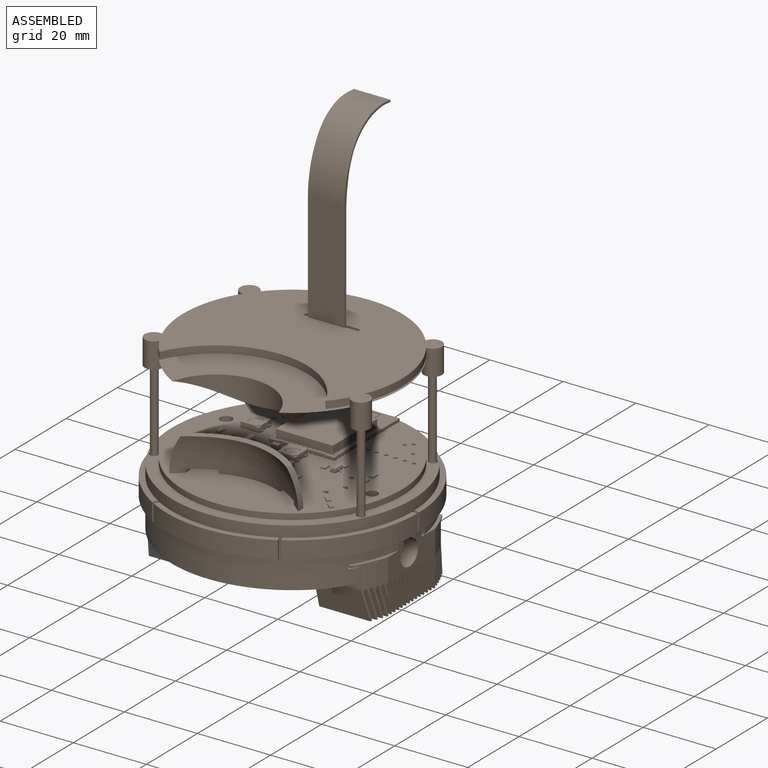
[diagram: assembled view]
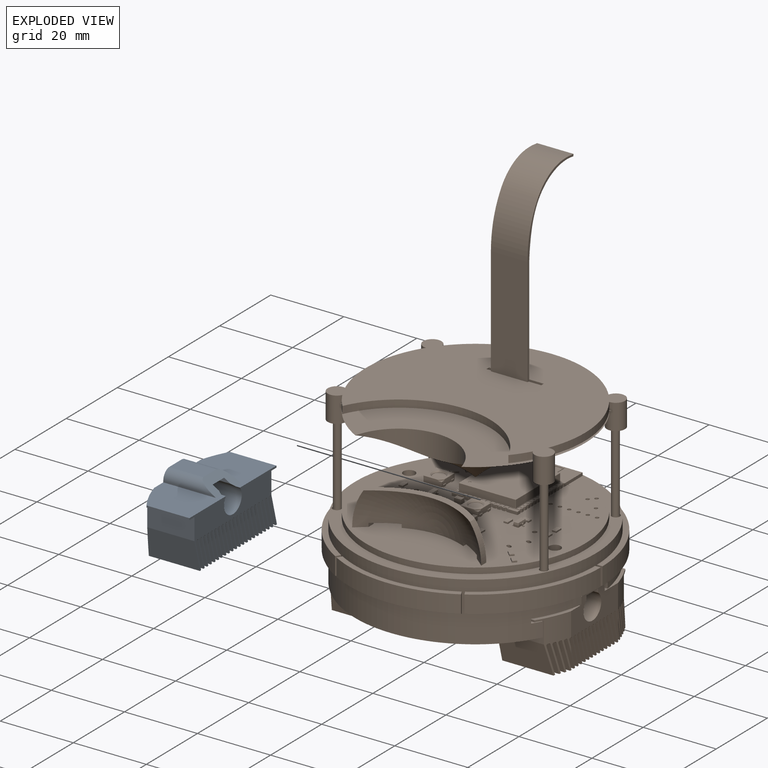
[diagram: exploded view]
GUIDED TOUR — FREECAD ASSEMBLY "whole_robot"

This assembly has 2 components, labeled P0..P1 below (a component is one placed body or linked part; the same part can appear more than once), held together by 0 modeled joints plus 1 derived contact edge. A joint is a constraint between two components; its type names the relative motion it leaves free:
  CONTACT — a derived adjacency edge — the two components touch in the source model (clearance under 2% of the assembly's diagonal); it is measured from the geometry, not a modeled constraint.
Axis/direction vectors are unit vectors and 'through' points are millimeter coordinates, both in the assembly's world frame.

MATES
  1. CONTACT "contact_0_1": P0 <-> P1, contact direction (1.000, 0.000, 0.000) through (133.69, -113.06, -18.40) mm (derived from contact, not a modeled constraint)

ASSEMBLY ORDER
  1. P0 — the base component [order heuristic]
  2. P1 [order heuristic]
Order-tag legend:
  [order heuristic] — this assembly is geometrically interlocked (no collision-free removal order exists), so components are listed in mate-graph order; insertion feasibility is not verified.

Of the 2 components, 1 carries a construction recipe — the FreeCAD feature program (sketches with constraints, then the solid features that consume them) that regenerates the part from scratch, quoted from this document or from the linked companion document it references; the rest are supplied as boundary geometry only. The tour below walks the components in assembly order: each is shown spotlighted twice — in the assembled view, then in the exploded view, where a leader line traces a displaced component back to its assembled socket (components that stay in place when exploded have no leader line; saturated green if recipe-attached, orange if geometry-only; every other component desaturated gray) — followed by its recipe or geometry summary and the mates that hold it.
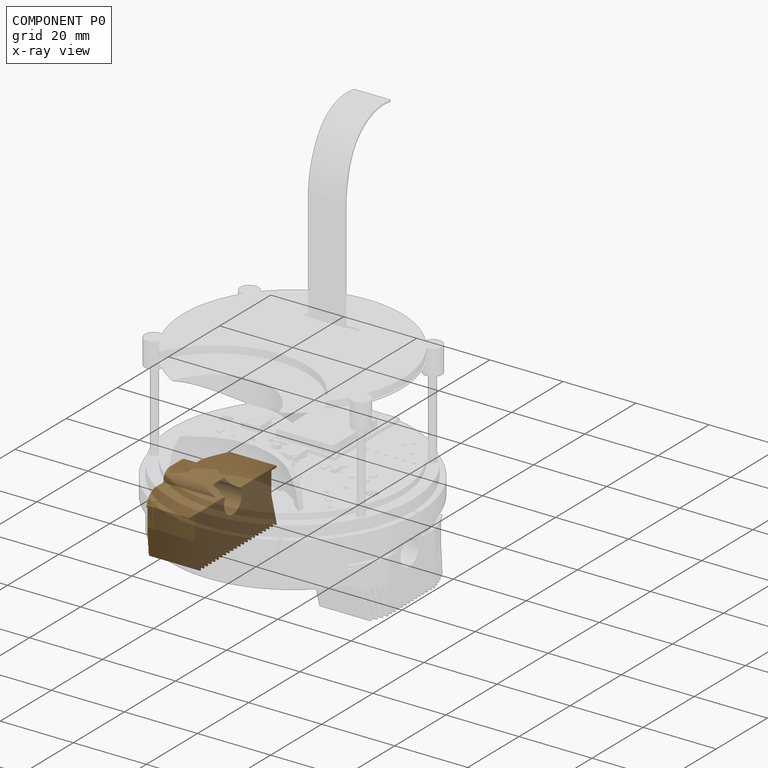
[diagram: component P0 — x-ray view]
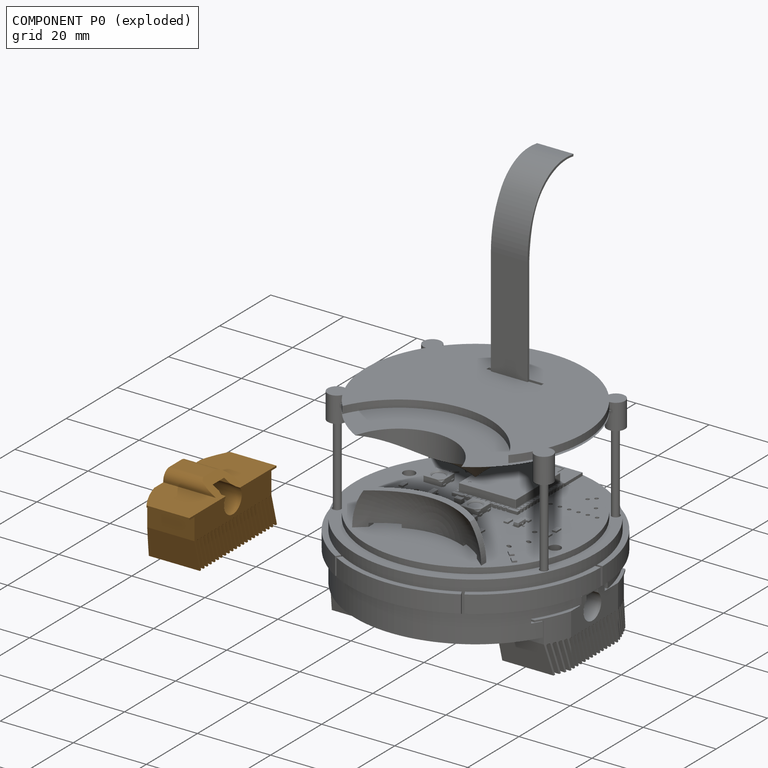
[diagram: component P0 — exploded]
COMPONENT P0 — geometry summary ("Solid001"; no construction recipe available for this part):
  bounding box: 34.2 x 17.6 x 15.7 mm
  tessellated surface: 3,678 triangles
  volume: 3857 mm^3 (41% of its bounding box)
Held by: resting contact with P1 (derived edge).
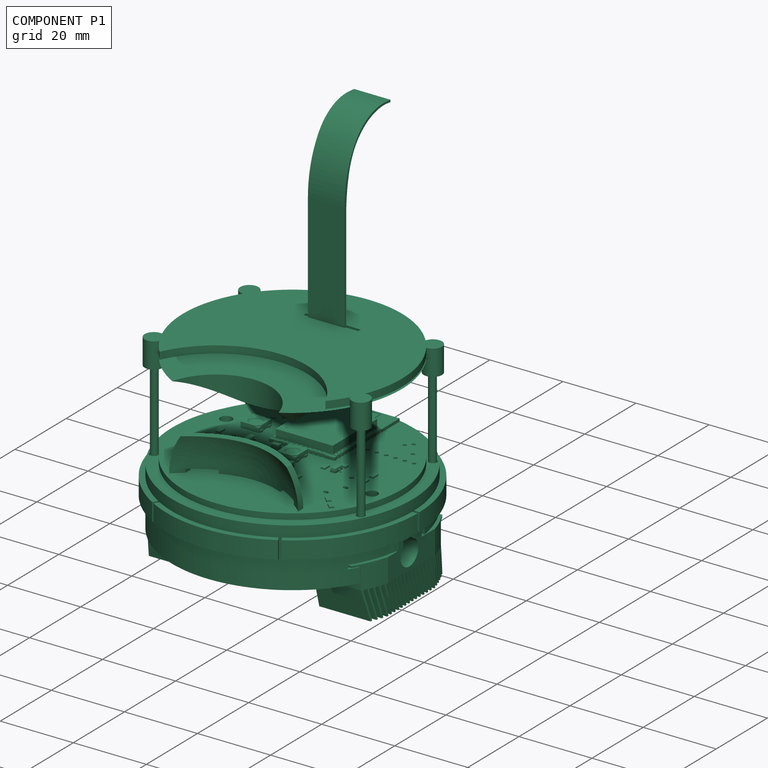
[diagram: component P1 — assembled]
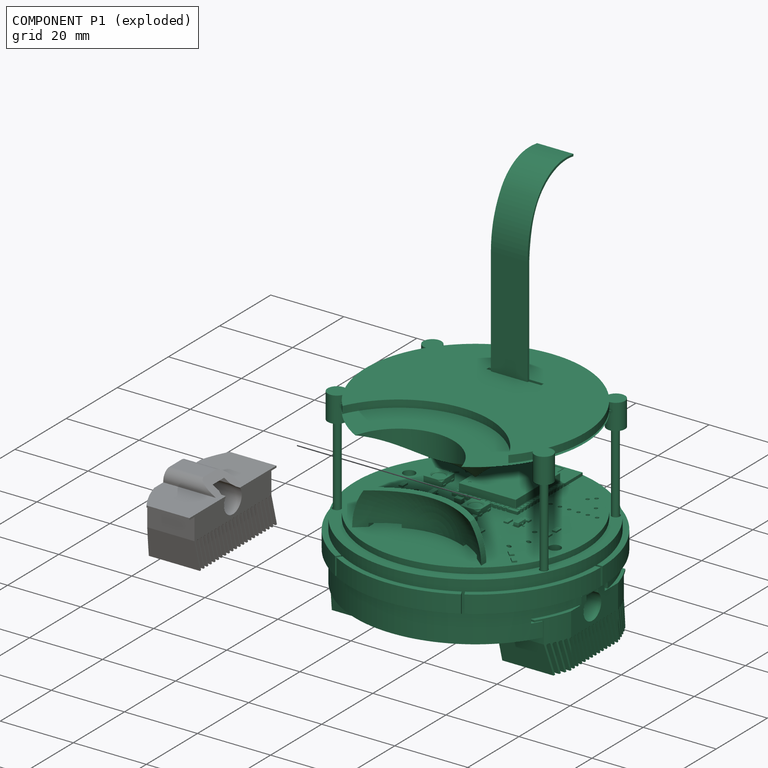
[diagram: component P1 — exploded]
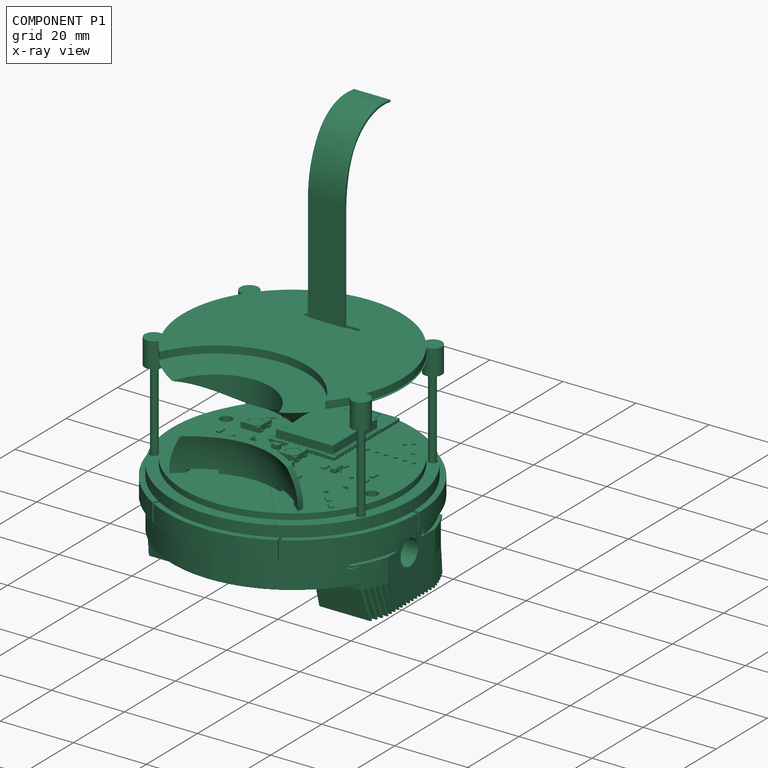
[diagram: component P1 — x-ray view]
COMPONENT P1 — recipe-attached ("Part", modeled in this document).
Held by: resting contact with P0 (derived edge).
Construction recipe (the document's own serialized feature program — sketch geometry with constraints, then the solid features built on it; lengths are millimeters unless a unit is written):

FEATURE [Sketcher::SketchObject] Sketch001
  FullyConstrained = false
  MapMode = 5
  Support = -> [XY_Plane030]
  sketch-geometry (1):
    g0: Circle CenterX=0 CenterY=0 CenterZ=0 NormalX=0 NormalY=0 NormalZ=1 AngleXU=0 Radius=33
  constraints (2):
    c: Coincident(g0,g-1)
    c: Radius(g0) = 33
FEATURE [PartDesign::Pad] Pad
  AllowMultiFace = false
  Direction = (0,0,1)
  Length = 7.5
  Length2 = 100
  Profile = -> Sketch001
  ReferenceAxis = -> Sketch001 [N_Axis]
  Type = 0
FEATURE [Sketcher::SketchObject] Sketch002
  FullyConstrained = true
  MapMode = 5
  Placement = pos=(0,0,7.5) rot=(0,0,1;0rad)
  Support = -> [Pad]
  sketch-geometry (1):
    g0: Circle CenterX=0 CenterY=0 CenterZ=0 NormalX=0 NormalY=0 NormalZ=1 AngleXU=0 Radius=34.5
  constraints (2):
    c: Radius(g0) = 34.5
    c: Coincident(g0,g-1)
FEATURE [PartDesign::Pad] Pad001
  AllowMultiFace = false
  BaseFeature = -> Pad
  Direction = (0,0,1)
  Length = 5.5
  Length2 = 100
  Profile = -> Sketch002
  ReferenceAxis = -> Sketch002 [N_Axis]
  Type = 0
FEATURE [Sketcher::SketchObject] Sketch003
  FullyConstrained = true
  MapMode = 5
  Placement = pos=(0,0,13) rot=(0,0,1;0rad)
  Support = -> [Pad001]
  sketch-geometry (1):
    g0: Circle CenterX=0 CenterY=0 CenterZ=0 NormalX=0 NormalY=0 NormalZ=1 AngleXU=0 Radius=33
  constraints (2):
    c: Coincident(g0,g-1)
    c: Radius(g0) = 33
FEATURE [PartDesign::Pad] Pad002
  AllowMultiFace = false
  BaseFeature = -> Pad001
  Direction = (0,0,1)
  Length = 3
  Length2 = 100
  Profile = -> Sketch003
  Type = 0
FEATURE [Sketcher::SketchObject] Sketch004
  AttachmentOffset = pos=(0,0,34) rot=(0,0,1;0rad)
  FullyConstrained = true
  MapMode = 5
  Placement = pos=(34,-7.5e-15,7.5e-15) rot=(0.57735,0.57735,0.57735;2.0944rad)
  Support = -> [YZ_Plane030]
  sketch-geometry (12):
    g0: LineSegment StartX=-15.375 StartY=0 StartZ=0 EndX=-15.375 EndY=4 EndZ=0
    g1: LineSegment StartX=-15.375 StartY=4 StartZ=0 EndX=-17.875 EndY=4 EndZ=0
    g2: LineSegment StartX=-17.875 StartY=4 StartZ=0 EndX=-17.875 EndY=5.17 EndZ=0
    g3: LineSegment StartX=-17.875 StartY=5.17 StartZ=0 EndX=-5.125 EndY=5.17 EndZ=0
    g4: LineSegment StartX=-5.125 StartY=5.17 StartZ=0 EndX=-5.125 EndY=7.5 EndZ=0
    g5: LineSegment StartX=-5.125 StartY=7.5 StartZ=0 EndX=5.125 EndY=7.5 EndZ=0
    g6: LineSegment StartX=5.125 StartY=7.5 StartZ=0 EndX=5.125 EndY=5.17 EndZ=0
    g7: LineSegment StartX=5.125 StartY=5.17 StartZ=0 EndX=17.875 EndY=5.17 EndZ=0
    g8: LineSegment StartX=17.875 StartY=5.17 StartZ=0 EndX=17.875 EndY=4 EndZ=0
    g9: LineSegment StartX=17.875 StartY=4 StartZ=0 EndX=15.375 EndY=4 EndZ=0
    g10: LineSegment StartX=15.375 StartY=4 StartZ=0 EndX=15.375 EndY=0 EndZ=0
    g11: LineSegment StartX=15.375 StartY=0 StartZ=0 EndX=-15.375 EndY=0 EndZ=0
  constraints (35):
    c: Coincident(g0,g1)
    c: Coincident(g1,g2)
    c: Coincident(g2,g3)
    c: Coincident(g3,g4)
    c: Coincident(g4,g5)
    c: Coincident(g5,g6)
    c: Coincident(g6,g7)
    c: Coincident(g7,g8)
    c: Coincident(g8,g9)
    c: Coincident(g9,g10)
    c: Coincident(g10,g11)
    c: Coincident(g11,g0)
    c: Horizontal(g5)
    c: Horizontal(g7)
    c: Horizontal(g9)
    c: Horizontal(g1)
    c: Horizontal(g3)
    c: Horizontal(g11)
    c: Vertical(g6)
    c: Vertical(g4)
    c: Vertical(g2)
    c: Vertical(g0)
    c: Vertical(g10)
    c: Vertical(g8)
    c: Symmetric(g10,g0,g-1)
    c: DistanceY(g10,g5) = 7.5
    c: DistanceY(g10,g10) = 4
    c: DistanceY(g8,g8) = 1.17
    c: DistanceX(g11,g11) = 30.75
    c: DistanceX(g9,g9) = 2.5
    c: Equal(g2,g8)
    c: Equal(g9,g1)
    c: Equal(g3,g7)
    c: Equal(g0,g10)
    c: DistanceX(g3,g6) = 10.25
FEATURE [PartDesign::Pocket] Pocket  label="Fot1"
  AllowMultiFace = false
  BaseFeature = -> Pad002
  Direction = (-1,2e-16,-3e-16)
  Length = 18
  Length2 = 100
  Profile = -> Sketch004
  Type = 4
FEATURE [Sketcher::SketchObject] Sketch005
  AttachmentOffset = pos=(0,0,-34) rot=(0,1,0;3.14159rad)
  FullyConstrained = true
  MapMode = 5
  Placement = pos=(-34,7.5e-15,-7.5e-15) rot=(-0.57735,0.57735,0.57735;4.18879rad)
  Support = -> [YZ_Plane030]
  sketch-geometry (12):
    g0: LineSegment StartX=-15.375 StartY=0 StartZ=0 EndX=-15.375 EndY=4 EndZ=0
    g1: LineSegment StartX=-15.375 StartY=4 StartZ=0 EndX=-17.875 EndY=4 EndZ=0
    g2: LineSegment StartX=-17.875 StartY=4 StartZ=0 EndX=-17.875 EndY=5.17 EndZ=0
    g3: LineSegment StartX=-17.875 StartY=5.17 StartZ=0 EndX=-5.125 EndY=5.17 EndZ=0
    g4: LineSegment StartX=-5.125 StartY=5.17 StartZ=0 EndX=-5.125 EndY=7.5 EndZ=0
    g5: LineSegment StartX=-5.125 StartY=7.5 StartZ=0 EndX=5.125 EndY=7.5 EndZ=0
    g6: LineSegment StartX=5.125 StartY=7.5 StartZ=0 EndX=5.125 EndY=5.17 EndZ=0
    g7: LineSegment StartX=5.125 StartY=5.17 StartZ=0 EndX=17.875 EndY=5.17 EndZ=0
    g8: LineSegment StartX=17.875 StartY=5.17 StartZ=0 EndX=17.875 EndY=4 EndZ=0
    g9: LineSegment StartX=17.875 StartY=4 StartZ=0 EndX=15.375 EndY=4 EndZ=0
    g10: LineSegment StartX=15.375 StartY=4 StartZ=0 EndX=15.375 EndY=0 EndZ=0
    g11: LineSegment StartX=15.375 StartY=0 StartZ=0 EndX=-15.375 EndY=0 EndZ=0
  constraints (35):
    c: Coincident(g0,g1)
    c: Coincident(g1,g2)
    c: Coincident(g2,g3)
    c: Coincident(g3,g4)
    c: Coincident(g4,g5)
    c: Coincident(g5,g6)
    c: Coincident(g6,g7)
    c: Coincident(g7,g8)
    c: Coincident(g8,g9)
    c: Coincident(g9,g10)
    c: Coincident(g10,g11)
    c: Coincident(g11,g0)
    c: Horizontal(g5)
    c: Horizontal(g7)
    c: Horizontal(g9)
    c: Horizontal(g11)
    c: Horizontal(g1)
    c: Horizontal(g3)
    c: Vertical(g4)
    c: Vertical(g2)
    c: Vertical(g0)
    c: Vertical(g10)
    c: Vertical(g8)
    c: Vertical(g6)
    c: Equal(g7,g3)
    c: Equal(g2,g8)
    c: Equal(g9,g1)
    c: Equal(g0,g10)
    c: Symmetric(g10,g0,g-1)
    c: DistanceY(g10,g5) = 7.5
    c: DistanceY(g8,g8) = 1.17
    c: DistanceY(g10,g10) = 4
    c: DistanceX(g11,g11) = 30.75
    c: DistanceX(g1,g1) = 2.5
    c: DistanceX(g5,g5) = 10.25
FEATURE [PartDesign::Pocket] Pocket001  label="Fot2"
  AllowMultiFace = false
  BaseFeature = -> Pocket
  Direction = (1,-4e-16,2e-16)
  Length = 18
  Length2 = 100
  Profile = -> Sketch005
  Type = 4
FEATURE [Sketcher::SketchObject] Sketch020
  FullyConstrained = true
  MapMode = 5
  Placement = pos=(0,0,16) rot=(0,0,1;0rad)
  sketch-geometry (4):
    g0: ArcOfCircle CenterX=0 CenterY=0 CenterZ=0 NormalX=0 NormalY=0 NormalZ=1 AngleXU=0 Radius=22 StartAngle=1.09893 EndAngle=2.04266
    g1: ArcOfCircle CenterX=0 CenterY=0 CenterZ=0 NormalX=0 NormalY=0 NormalZ=1 AngleXU=0 Radius=22 StartAngle=4.24053 EndAngle=5.18425
    g2: LineSegment StartX=-10 StartY=19.5959 StartZ=0 EndX=-10 EndY=-19.5959 EndZ=0
    g3: LineSegment StartX=10 StartY=19.5959 StartZ=0 EndX=10 EndY=-19.5959 EndZ=0
  constraints (12):
    c: Coincident(g2,g0)
    c: Coincident(g3,g0)
    c: Coincident(g3,g1)
    c: Coincident(g2,g1)
    c: Coincident(g1,g0)
    c: Coincident(g0,g-1)
    c: DistanceY(g0,g0) = 0
    c: DistanceY(g1,g1) = 0
    c: Vertical(g2)
    c: Radius(g0) = 22
    c: Radius(g1) = 22
    c: DistanceX(g0,g0) = 20
FEATURE [PartDesign::Pocket] Pocket007
  AllowMultiFace = false
  BaseFeature = -> Pocket001
  Direction = (0,0,-1)
  Length = 50
  Length2 = 100
  Profile = -> Sketch020
  ReferenceAxis = -> Sketch020 [N_Axis]
  Type = 4
FEATURE [Sketcher::SketchObject] Sketch037
  FullyConstrained = true
  MapMode = 5
  Placement = pos=(0,0,16) rot=(0,0,1;0rad)
  sketch-geometry (1):
    g0: Circle CenterX=0 CenterY=0 CenterZ=0 NormalX=0 NormalY=0 NormalZ=1 AngleXU=0 Radius=22
  constraints (2):
    c: Coincident(g0,g-1)
    c: Radius(g0) = 22
FEATURE [PartDesign::Pocket] Pocket016  label="MycketStortHål"
  BaseFeature = -> Pocket007
  Direction = (0,0,-1)
  Length = 14
  Length2 = 5
  Profile = -> Sketch037
  ReferenceAxis = -> Sketch037 [N_Axis]
  Type = 0
FEATURE [Sketcher::SketchObject] Sketch040
  FullyConstrained = true
  MapMode = 5
  Placement = pos=(0,0,16) rot=(0,0,1;0rad)
  sketch-geometry (4):
    g0: LineSegment StartX=-29.5804 StartY=-5 StartZ=0 EndX=-14 EndY=-5 EndZ=0
    g1: LineSegment StartX=-14 StartY=-5 StartZ=0 EndX=-14 EndY=-16 EndZ=0
    g2: LineSegment StartX=-14 StartY=-16 StartZ=0 EndX=-25.3772 EndY=-16 EndZ=0
    g3: ArcOfCircle CenterX=0 CenterY=0 CenterZ=0 NormalX=0 NormalY=0 NormalZ=1 AngleXU=0 Radius=30 StartAngle=3.30904 EndAngle=3.70413
  constraints (12):
    c: Coincident(g0,g1)
    c: Coincident(g1,g2)
    c: Horizontal(g0)
    c: Horizontal(g2)
    c: Vertical(g1)
    c: Coincident(g3,g-1)
    c: Coincident(g3,g2)
    c: Coincident(g3,g0)
    c: Radius(g3) = 30
    c: DistanceX(g0,g3) = 14
    c: DistanceY(g1,g1) = 11
    c: DistanceY(g0,g3) = 5
FEATURE [PartDesign::Pocket] Pocket019  label="HållTillInteJ"
  BaseFeature = -> Pocket016
  Direction = (0,0,-1)
  Length = 4
  Length2 = 5
  Profile = -> Sketch040
  ReferenceAxis = -> Sketch040 [N_Axis]
  Type = 0
FEATURE [Sketcher::SketchObject] Sketch041
  FullyConstrained = true
  MapMode = 5
  Placement = pos=(0,0,16) rot=(0,0,1;0rad)
  Support = -> [Pocket019]
  sketch-geometry (4):
    g0: LineSegment StartX=19.2614 StartY=23 StartZ=0 EndX=8.5 EndY=23 EndZ=0
    g1: LineSegment StartX=8.5 StartY=23 StartZ=0 EndX=8.5 EndY=8.5 EndZ=0
    g2: LineSegment StartX=8.5 StartY=8.5 StartZ=0 EndX=28.7706 EndY=8.5 EndZ=0
    g3: ArcOfCircle CenterX=0 CenterY=0 CenterZ=0 NormalX=0 NormalY=0 NormalZ=1 AngleXU=0 Radius=30 StartAngle=0.287268 EndAngle=0.873633
  constraints (12):
    c: Horizontal(g0)
    c: Coincident(g0,g1)
    c: Vertical(g1)
    c: Coincident(g1,g2)
    c: Horizontal(g2)
    c: Coincident(g3,g-1)
    c: Coincident(g3,g2)
    c: Radius(g3) = 30
    c: Coincident(g0,g3)
    c: DistanceX(g3,g1) = 8.5
    c: DistanceY(g3,g1) = 8.5
    c: DistanceY(g1,g1) = 14.5
FEATURE [PartDesign::Pocket] Pocket020
  BaseFeature = -> Pocket019
  Direction = (0,0,-1)
  Length = 4
  Length2 = 5
  Profile = -> Sketch041
  ReferenceAxis = -> Sketch041 [N_Axis]
  Type = 0
FEATURE [Sketcher::SketchObject] Sketch042
  FullyConstrained = true
  MapMode = 5
  Placement = pos=(0,0,16) rot=(0,0,1;0rad)
  Support = -> [Pocket020]
  sketch-geometry (2):
    g0: Circle CenterX=-23.833 CenterY=8 CenterZ=0 NormalX=0 NormalY=0 NormalZ=1 AngleXU=0 Radius=1.5
    g1: Circle CenterX=25.75 CenterY=-5.75 CenterZ=0 NormalX=0 NormalY=0 NormalZ=1 AngleXU=0 Radius=1.5
  constraints (6):
    c: Radius(g1) = 1.5
    c: Radius(g0) = 1.5
    c: DistanceX(g-1,g1) = 25.75
    c: DistanceX(g0,g-1) = 23.833
    c: DistanceY(g1,g-1) = 5.75
    c: DistanceY(g-1,g0) = 8
FEATURE [PartDesign::Pocket] Pocket021
  BaseFeature = -> Pocket020
  Direction = (0,0,-1)
  Length = 8
  Length2 = 5
  Profile = -> Sketch042
  ReferenceAxis = -> Sketch042 [N_Axis]
  Type = 0
FEATURE [PartDesign::Chamfer] Chamfer
  Angle = 45
  Base = -> Pocket021 [Edge5,Edge4,Edge6,Edge7,Edge3]
  BaseFeature = -> Pocket021
  ChamferType = 1
  FlipDirection = false
  Size = 0.7
  Size2 = 1.499
  SupportTransform = false
  UseAllEdges = false
FEATURE [Sketcher::SketchObject] Sketch043
  FullyConstrained = false
  MapMode = 5
  Placement = pos=(0,0,16) rot=(0,0,1;0rad)
  Support = -> [Chamfer]
  sketch-geometry (16):
    g0: ArcOfCircle CenterX=0 CenterY=0 CenterZ=0 NormalX=0 NormalY=0 NormalZ=1 AngleXU=0 Radius=34.5 StartAngle=3.13009 EndAngle=3.15215
    g1: ArcOfCircle CenterX=0 CenterY=0 CenterZ=0 NormalX=0 NormalY=0 NormalZ=1 AngleXU=0 Radius=34.5 StartAngle=4.17349 EndAngle=4.19489
    g2: ArcOfCircle CenterX=0 CenterY=0 CenterZ=0 NormalX=0 NormalY=0 NormalZ=1 AngleXU=0 Radius=34.5 StartAngle=5.22989 EndAngle=5.25129
    g3: ArcOfCircle CenterX=0 CenterY=0 CenterZ=0 NormalX=0 NormalY=0 NormalZ=1 AngleXU=0 Radius=34.5 StartAngle=6.27262 EndAngle=6.29469
    g4: ArcOfCircle CenterX=0 CenterY=0 CenterZ=0 NormalX=0 NormalY=0 NormalZ=1 AngleXU=0 Radius=33 StartAngle=6.27196 EndAngle=6.29469
    g5: ArcOfCircle CenterX=0 CenterY=0 CenterZ=0 NormalX=0 NormalY=0 NormalZ=1 AngleXU=0 Radius=33 StartAngle=5.22923 EndAngle=5.25195
    g6: ArcOfCircle CenterX=0 CenterY=0 CenterZ=0 NormalX=0 NormalY=0 NormalZ=1 AngleXU=0 Radius=33 StartAngle=4.17282 EndAngle=4.19555
    g7: ArcOfCircle CenterX=0 CenterY=0 CenterZ=0 NormalX=0 NormalY=0 NormalZ=1 AngleXU=0 Radius=33 StartAngle=3.13009 EndAngle=3.15282
    g8: LineSegment StartX=-34.4977 StartY=0.396892 StartZ=0 EndX=-32.9978 EndY=0.379644 EndZ=0
    g9: LineSegment StartX=-34.4981 StartY=-0.36438 StartZ=0 EndX=-32.9979 EndY=-0.370356 EndZ=0
    g10: LineSegment StartX=32.9978 StartY=0.379644 StartZ=0 EndX=34.4977 EndY=0.396892 EndZ=0
    g11: LineSegment StartX=32.9979 StartY=-0.370356 StartZ=0 EndX=34.4981 EndY=-0.36438 EndZ=0
    g12: LineSegment StartX=16.9542 StartY=-28.3118 StartZ=0 EndX=17.7052 EndY=-29.6104 EndZ=0
    g13: LineSegment StartX=16.3064 StartY=-28.6897 StartZ=0 EndX=17.0674 EndY=-29.9825 EndZ=0
    g14: LineSegment StartX=-16.3064 StartY=-28.6897 StartZ=0 EndX=-17.0674 EndY=-29.9825 EndZ=0
    g15: LineSegment StartX=-17.7052 StartY=-29.6104 StartZ=0 EndX=-16.9542 EndY=-28.3118 EndZ=0
  constraints (44):
    c: Coincident(g0,g-1)
    c: Coincident(g1,g0)
    c: Coincident(g2,g0)
    c: Coincident(g3,g0)
    c: Coincident(g4,g0)
    c: Coincident(g5,g0)
    c: Coincident(g6,g0)
    c: Coincident(g7,g0)
    c: Coincident(g8,g0)
    c: Coincident(g8,g7)
    c: Coincident(g9,g0)
    c: Coincident(g9,g7)
    c: Coincident(g10,g4)
    c: Coincident(g10,g3)
    c: Coincident(g11,g4)
    c: Coincident(g11,g3)
    c: Coincident(g12,g5)
    c: Coincident(g13,g5)
    c: Coincident(g13,g2)
    c: Coincident(g14,g6)
    c: Coincident(g14,g1)
    c: Coincident(g15,g1)
    c: Coincident(g15,g6)
    c: Radius(g4) = 33
    c: Radius(g3) = 34.5
    c: Radius(g2) = 34.5
    c: Radius(g5) = 33
    c: Radius(g6) = 33
    c: Radius(g1) = 34.5
    c: Radius(g7) = 33
    c: Radius(g0) = 34.5
    c: DistanceY(g4,g7) = 0
    c: DistanceY(g0,g3) = 0
    c: Equal(g11,g9)
    c: Equal(g9,g15)
    c: Equal(g9,g14)
    c: Coincident(g12,g2)
    c: Equal(g12,g14)
    c: Equal(g13,g15)
    c: DistanceY(g4,g7) = 0
    c: DistanceY(g6,g5) = 0
    c: DistanceY(g6,g5) = 0
    c: Distance(g6,g6) = 0.75
    c: Distance(g7,g7) = 0.75
FEATURE [PartDesign::Pocket] Pocket022
  BaseFeature = -> Chamfer
  Direction = (0,0,-1)
  Length = 50
  Length2 = 5
  Profile = -> Sketch043
  ReferenceAxis = -> Sketch043 [N_Axis]
  Type = 0
FEATURE [Sketcher::SketchObject] Sketch044
  FullyConstrained = true
  MapMode = 5
  Placement = pos=(0,0,16) rot=(0,0,1;0rad)
  Support = -> [Pocket022]
  sketch-geometry (4):
    g0: Circle CenterX=-28.3406 CenterY=-13.75 CenterZ=0 NormalX=0 NormalY=0 NormalZ=1 AngleXU=0 Radius=1.125
    g1: Circle CenterX=-25.1247 CenterY=19 CenterZ=0 NormalX=0 NormalY=0 NormalZ=1 AngleXU=0 Radius=1.125
    g2: Circle CenterX=25.1247 CenterY=19 CenterZ=0 NormalX=0 NormalY=0 NormalZ=1 AngleXU=0 Radius=1.125
    g3: Circle CenterX=28.3406 CenterY=-13.75 CenterZ=0 NormalX=0 NormalY=0 NormalZ=1 AngleXU=0 Radius=1.125
  constraints (12):
    c: Distance(g1,g-1) = 31.5
    c: Distance(g-1,g2) = 31.5
    c: Distance(g-1,g3) = 31.5
    c: Distance(g0,g-1) = 31.5
    c: Radius(g2) = 1.125
    c: Radius(g3) = 1.125
    c: Radius(g0) = 1.125
    c: Radius(g1) = 1.125
    c: DistanceY(g-1,g2) = 19
    c: DistanceY(g-1,g1) = 19
    c: DistanceY(g0,g-1) = 13.75
    c: DistanceY(g3,g-1) = 13.75
FEATURE [PartDesign::Pocket] Pocket023  label="Ben001"
  BaseFeature = -> Pocket022
  Direction = (0,0,-1)
  Length = 5
  Length2 = 5
  Profile = -> Sketch044
  ReferenceAxis = -> Sketch044 [N_Axis]
  Type = 0
FEATURE [PartDesign::ShapeBinder] CopyPad013
  TraceSupport = false
FEATURE [PartDesign::ShapeBinder] CopyPad014
  TraceSupport = false
FEATURE [PartDesign::ShapeBinder] CopyPad015
  TraceSupport = false
FEATURE [PartDesign::Body] Body001  label="MainBody"
  Group = -> [Sketch001,Pad,Sketch002,Pad001,Sketch003,Pad002,Sketch004,Pocket,Sketch005,Pocket001,Sketch020,Pocket007,Sketch037,Pocket016,Sketch040,Pocket019,Sketch041,Pocket020,Sketch042,Pocket021,Chamfer,Sketch043,Pocket022,Sketch044,Pocket023,CopyPad013,CopyPad014,CopyPad015]
  Origin = -> Origin030
  Placement = pos=(150,-100,-16) rot=(0,0,1;0rad)
  Tip = -> Pocket023
FEATURE [Sketcher::SketchObject] Sketch046
  FullyConstrained = true
  MapMode = 5
  Support = -> [XY_Plane035]
  sketch-geometry (1):
    g0: Circle CenterX=0 CenterY=0 CenterZ=0 NormalX=0 NormalY=0 NormalZ=1 AngleXU=0 Radius=30
  constraints (2):
    c: Coincident(g0,g-1)
    c: Radius(g0) = 30
FEATURE [PartDesign::Pad] Pad010
  Direction = (0,0,1)
  Length = 2
  Length2 = 10
  Profile = -> Sketch046
  ReferenceAxis = -> Sketch046 [N_Axis]
  Type = 0
FEATURE [Sketcher::SketchObject] Sketch047
  FullyConstrained = true
  MapMode = 5
  Placement = pos=(0,0,2) rot=(0,0,1;0rad)
  Support = -> [Pad010]
  sketch-geometry (4):
    g0: Circle CenterX=-25.1247 CenterY=19 CenterZ=0 NormalX=0 NormalY=0 NormalZ=1 AngleXU=0 Radius=2.5
    g1: Circle CenterX=25.1247 CenterY=19 CenterZ=0 NormalX=0 NormalY=0 NormalZ=1 AngleXU=0 Radius=2.5
    g2: Circle CenterX=28.3406 CenterY=-13.75 CenterZ=0 NormalX=0 NormalY=0 NormalZ=1 AngleXU=0 Radius=2.5
    g3: Circle CenterX=-28.3406 CenterY=-13.75 CenterZ=0 NormalX=0 NormalY=0 NormalZ=1 AngleXU=0 Radius=2.5
  constraints (10):
    c: Equal(g1,g2)
    c: Equal(g1,g3)
    c: Equal(g1,g0)
    c: Radius(g1) = 2.5
    c: Symmetric(g1,g0,g-2)
    c: Symmetric(g2,g3,g-2)
    c: Distance(g1,g-1) = 31.5
    c: Distance(g2,g-1) = 31.5
    c: DistanceY(g2,g-1) = 13.75
    c: DistanceY(g-1,g1) = 19
FEATURE [PartDesign::Pad] Pad011
  BaseFeature = -> Pad010
  Direction = (0,0,1)
  Length = 0
  Length2 = 7
  Profile = -> Sketch047
  ReferenceAxis = -> Sketch047 [N_Axis]
  Type = 4
FEATURE [Sketcher::SketchObject] Sketch048
  FullyConstrained = true
  MapMode = 5
  Placement = pos=(0,0,-5) rot=(1,0,0;3.14159rad)
  Support = -> [Pad011]
  sketch-geometry (4):
    g0: Circle CenterX=-25.1247 CenterY=-19 CenterZ=0 NormalX=0 NormalY=0 NormalZ=1 AngleXU=0 Radius=1.5
    g1: Circle CenterX=25.1247 CenterY=-19 CenterZ=0 NormalX=0 NormalY=0 NormalZ=1 AngleXU=0 Radius=1.5
    g2: Circle CenterX=28.3406 CenterY=13.75 CenterZ=0 NormalX=0 NormalY=0 NormalZ=1 AngleXU=0 Radius=1.5
    g3: Circle CenterX=-28.3406 CenterY=13.75 CenterZ=0 NormalX=0 NormalY=0 NormalZ=1 AngleXU=0 Radius=1.5
  constraints (10):
    c: Equal(g0,g1)
    c: Equal(g0,g2)
    c: Equal(g0,g3)
    c: Radius(g0) = 1.5
    c: Distance(g2,g-1) = 31.5
    c: Distance(g-1,g1) = 31.5
    c: Symmetric(g2,g3,g-2)
    c: Symmetric(g1,g0,g-2)
    c: DistanceY(g-1,g2) = 13.75
    c: DistanceY(g1,g-1) = 19
FEATURE [PartDesign::Pocket] Pocket024
  BaseFeature = -> Pad011
  Direction = (0,0,1)
  Length = 5
  Length2 = 5
  Profile = -> Sketch048
  ReferenceAxis = -> Sketch048 [N_Axis]
  Type = 0
FEATURE [Sketcher::SketchObject] Sketch049
  FullyConstrained = true
  MapMode = 5
  Placement = pos=(0,0,0) rot=(1,0,0;1.5708rad)
  Support = -> [XZ_Plane035]
  sketch-geometry (3):
    g0: LineSegment StartX=0 StartY=0 StartZ=0 EndX=-30.5 EndY=0 EndZ=0
    g1: LineSegment StartX=-30.5 StartY=0 StartZ=0 EndX=0 EndY=-18 EndZ=0
    g2: LineSegment StartX=0 StartY=-18 StartZ=0 EndX=0 EndY=0 EndZ=0
  constraints (8):
    c: Coincident(g-1,g0)
    c: Horizontal(g0)
    c: Coincident(g0,g1)
    c: PointOnObject(g1,g-2)
    c: Coincident(g1,g2)
    c: Coincident(g2,g0)
    c: DistanceX(g0,g0) = 30.5
    c: DistanceY(g2,g2) = 18
FEATURE [PartDesign::Groove] Groove
  Angle = 360
  Axis = (0,2e-16,1)
  Base = (0,0,0)
  BaseFeature = -> Pocket024
  Profile = -> Sketch049
  ReferenceAxis = -> Sketch049 [V_Axis]
  Reversed = true
FEATURE [Sketcher::SketchObject] Sketch050
  FullyConstrained = true
  MapMode = 5
  Placement = pos=(0,0,2) rot=(0,0,1;0rad)
  Support = -> [Groove]
  sketch-geometry (4):
    g0: LineSegment StartX=-7.5 StartY=16 StartZ=0 EndX=7.5 EndY=16 EndZ=0
    g1: LineSegment StartX=7.5 StartY=16 StartZ=0 EndX=7.5 EndY=15 EndZ=0
    g2: LineSegment StartX=7.5 StartY=15 StartZ=0 EndX=-7.5 EndY=15 EndZ=0
    g3: LineSegment StartX=-7.5 StartY=15 StartZ=0 EndX=-7.5 EndY=16 EndZ=0
  constraints (12):
    c: Coincident(g0,g1)
    c: Coincident(g1,g2)
    c: Coincident(g2,g3)
    c: Coincident(g3,g0)
    c: Horizontal(g0)
    c: Horizontal(g2)
    c: Vertical(g1)
    c: Vertical(g3)
    c: DistanceY(g-1,g2) = 15
    c: DistanceX(g2,g2) = 15
    c: DistanceY(g1,g1) = 1
    c: DistanceX(g2,g-1) = 7.5
FEATURE [PartDesign::Pocket] Pocket025
  BaseFeature = -> Groove
  Direction = (0,0,-1)
  Length = 5
  Length2 = 5
  Profile = -> Sketch050
  ReferenceAxis = -> Sketch050 [N_Axis]
  Type = 0
FEATURE [Sketcher::SketchObject] Sketch051
  ExternalGeometry = -> [Pocket025]
  FullyConstrained = true
  MapMode = 5
  Placement = pos=(0,0,0) rot=(1,0,0;3.14159rad)
  Support = -> [Pocket025]
  sketch-geometry (8):
    g0: LineSegment StartX=-8.5 StartY=-14 StartZ=0 EndX=8.5 EndY=-14 EndZ=0
    g1: LineSegment StartX=8.5 StartY=-14 StartZ=0 EndX=8.5 EndY=-17 EndZ=0
    g2: LineSegment StartX=8.5 StartY=-17 StartZ=0 EndX=-8.5 EndY=-17 EndZ=0
    g3: LineSegment StartX=-8.5 StartY=-17 StartZ=0 EndX=-8.5 EndY=-14 EndZ=0
    g4: LineSegment StartX=-7.5 StartY=-15 StartZ=0 EndX=7.5 EndY=-15 EndZ=0
    g5: LineSegment StartX=7.5 StartY=-15 StartZ=0 EndX=7.5 EndY=-16 EndZ=0
    g6: LineSegment StartX=7.5 StartY=-16 StartZ=0 EndX=-7.5 EndY=-16 EndZ=0
    g7: LineSegment StartX=-7.5 StartY=-16 StartZ=0 EndX=-7.5 EndY=-15 EndZ=0
  constraints (22):
    c: Coincident(g0,g1)
    c: Coincident(g1,g2)
    c: Coincident(g2,g3)
    c: Coincident(g3,g0)
    c: Horizontal(g0)
    c: Horizontal(g2)
    c: Vertical(g1)
    c: Vertical(g3)
    c: Coincident(g4,g5)
    c: Coincident(g5,g6)
    c: Coincident(g6,g7)
    c: Coincident(g7,g4)
    c: Horizontal(g4)
    c: Horizontal(g6)
    c: Vertical(g5)
    c: Vertical(g7)
    c: Coincident(g4,g-5)
    c: Coincident(g5,g-6)
    c: DistanceX(g4,g0) = 1
    c: DistanceX(g0,g4) = 1
    c: DistanceY(g4,g0) = 1
    c: DistanceY(g1,g1) = 3
FEATURE [PartDesign::Pad] Pad012
  BaseFeature = -> Pocket025
  Direction = (0,0,-1)
  Length = 3.3
  Length2 = 10
  Profile = -> Sketch051
  ReferenceAxis = -> Sketch051 [N_Axis]
  Type = 0
FEATURE [Sketcher::SketchObject] Sketch052
  FullyConstrained = true
  MapMode = 5
  Placement = pos=(0,0,2) rot=(0,0,1;0rad)
  Support = -> [Pad012]
  sketch-geometry (1):
    g0: Circle CenterX=0 CenterY=-30 CenterZ=0 NormalX=0 NormalY=0 NormalZ=1 AngleXU=0 Radius=25
  constraints (3):
    c: PointOnObject(g0,g-2)
    c: DistanceY(g0,g-1) = 30
    c: Radius(g0) = 25
FEATURE [PartDesign::Pocket] Pocket026
  BaseFeature = -> Pad012
  Direction = (0,0,-1)
  Length = 5
  Length2 = 5
  Profile = -> Sketch052
  ReferenceAxis = -> Sketch052 [N_Axis]
  Type = 0
FEATURE [PartDesign::Body] Body006  label="Hatt2"
  Group = -> [Sketch046,Pad010,Sketch047,Pad011,Sketch048,Pocket024,Sketch049,Groove,Sketch050,Pocket025,Sketch051,Pad012,Sketch052,Pocket026]
  Origin = -> Origin035
  Placement = pos=(150,-100,27) rot=(0,0,1;0rad)
  Tip = -> Pocket026
FEATURE [PartDesign::ShapeBinder] CopyPocket024
  TraceSupport = false
FEATURE [Sketcher::SketchObject] Sketch060
  FullyConstrained = true
  Placement = pos=(0,0,0) rot=(1,0,0;1.5708rad)
  sketch-geometry (5):
    g0: ArcOfParabola CenterX=-5 CenterY=0 CenterZ=0 NormalX=0 NormalY=0 NormalZ=1 Focal=5 AngleXU=0 StartAngle=10 EndAngle=26.4575
    g1: GeomPoint X=0 Y=0 Z=0
    g2: LineSegment StartX=-5 StartY=0 StartZ=0 EndX=0 EndY=0 EndZ=0
    g3: LineSegment StartX=0 StartY=10 StartZ=0 EndX=0 EndY=26.4575 EndZ=0
    g4: LineSegment StartX=0 StartY=26.4575 StartZ=0 EndX=30 EndY=26.4575 EndZ=0
  constraints (13):
    c: InternalAlignment(g1,g0)
    c: InternalAlignment(g2,g0)
    c: DistanceX(g1,g-1) = 0
    c: Horizontal(g2)
    c: DistanceY(g-1,g1) = 0
    c: DistanceX(g0,g1) = 0
    c: DistanceX(g0,g0) = 30
    c: DistanceY(g1,g0) = 10
    c: Coincident(g3,g0)
    c: Vertical(g3)
    c: Coincident(g4,g0)
    c: Horizontal(g4)
    c: Coincident(g3,g4)
FEATURE [PartDesign::Revolution] Revolution003
  Angle = 360
  Axis = (0,0,1)
  Base = (0,0,0)
  Placement = pos=(0,0,0) rot=(1,0,0;1.5708rad)
  Profile = -> Sketch060
  ReferenceAxis = -> Sketch060 [V_Axis]
  Reversed = true
FEATURE [Sketcher::SketchObject] Sketch061
  FullyConstrained = true
  MapMode = 5
  Placement = pos=(0,5.8e-15,26.4575) rot=(0,0,1;3.14159rad)
  Support = -> [Revolution003]
  sketch-geometry (4):
    g0: LineSegment StartX=8.75 StartY=-18.25 StartZ=0 EndX=-8.75 EndY=-18.25 EndZ=0
    g1: LineSegment StartX=-8.75 StartY=-18.25 StartZ=0 EndX=-8.75 EndY=-14.75 EndZ=0
    g2: LineSegment StartX=-8.75 StartY=-14.75 StartZ=0 EndX=8.75 EndY=-14.75 EndZ=0
    g3: LineSegment StartX=8.75 StartY=-14.75 StartZ=0 EndX=8.75 EndY=-18.25 EndZ=0
  constraints (12):
    c: Coincident(g0,g1)
    c: Coincident(g1,g2)
    c: Coincident(g2,g3)
    c: Coincident(g3,g0)
    c: Horizontal(g0)
    c: Horizontal(g2)
    c: Vertical(g1)
    c: Vertical(g3)
    c: DistanceY(g1,g1) = 3.5
    c: DistanceX(g2,g2) = 17.5
    c: DistanceY(g2,g-1) = 14.75
    c: DistanceX(g-1,g2) = 8.75
FEATURE [PartDesign::Pocket] Pocket031
  BaseFeature = -> Revolution003
  Direction = (0,-4e-16,-1)
  Length = 4
  Length2 = 5
  Placement = pos=(0,0,0) rot=(1,0,0;1.5708rad)
  Profile = -> Sketch061
  ReferenceAxis = -> Sketch061 [N_Axis]
  Type = 0
FEATURE [Sketcher::SketchObject] Sketch062
  ExternalGeometry = -> [Pocket031]
  FullyConstrained = false
  MapMode = 5
  Placement = pos=(0,5.8e-15,26.4575) rot=(0,0,1;3.14159rad)
  Support = -> [Pocket031]
  sketch-geometry (2):
    g0: Circle CenterX=285.182 CenterY=136.159 CenterZ=0 NormalX=0 NormalY=0 NormalZ=1 AngleXU=0 Radius=13.1656
    g1: Circle CenterX=0 CenterY=30 CenterZ=0 NormalX=0 NormalY=0 NormalZ=1 AngleXU=0 Radius=15
  constraints (3):
    c: PointOnObject(g1,g-3)
    c: DistanceX(g1,g-3) = 0
    c: Radius(g1) = 15
FEATURE [PartDesign::Pocket] Pocket032
  BaseFeature = -> Pocket031
  Direction = (0,-6e-16,-1)
  Length = 50
  Length2 = 5
  Placement = pos=(0,0,0) rot=(1,0,0;1.5708rad)
  Profile = -> Sketch062
  ReferenceAxis = -> Sketch062 [N_Axis]
  Type = 0
FEATURE [PartDesign::Body] Body008  label="Kon2"
  Group = -> [Sketch060,Revolution003,CopyPocket024,Sketch061,Pocket031,Sketch062,Pocket032]
  Origin = -> Origin037
  Placement = pos=(150,-100,0) rot=(0,0,1;0rad)
  Tip = -> Pocket032
FEATURE [Sketcher::SketchObject] Sketch064
  FullyConstrained = false
  MapMode = 5
  Support = -> [XY_Plane038]
  sketch-geometry (1):
    g0: Circle CenterX=0 CenterY=0 CenterZ=0 NormalX=0 NormalY=0 NormalZ=1 AngleXU=0 Radius=1
  constraints (1):
    c: Radius(g0) = 1
FEATURE [PartDesign::Pad] Pad015
  Direction = (0,0,1)
  Length = 25
  Length2 = 10
  Profile = -> Sketch064
  ReferenceAxis = -> Sketch064 [N_Axis]
  Type = 0
FEATURE [PartDesign::Body] Body009
  Group = -> [Sketch064,Pad015]
  Origin = -> Origin038
  Placement = pos=(175,-81,0) rot=(0,0,1;0rad)
  Tip = -> Pad015
FEATURE [Sketcher::SketchObject] Sketch065
  FullyConstrained = false
  MapMode = 5
  Support = -> [XY_Plane039]
  sketch-geometry (1):
    g0: Circle CenterX=0 CenterY=0 CenterZ=0 NormalX=0 NormalY=0 NormalZ=1 AngleXU=0 Radius=1
  constraints (1):
    c: Radius(g0) = 1
FEATURE [PartDesign::Pad] Pad016
  Direction = (0,0,1)
  Length = 25
  Length2 = 10
  Profile = -> Sketch065
  ReferenceAxis = -> Sketch065 [N_Axis]
  Type = 0
FEATURE [PartDesign::Body] Body010
  Group = -> [Sketch065,Pad016]
  Origin = -> Origin039
  Placement = pos=(125,-81,0) rot=(0,0,1;0rad)
  Tip = -> Pad016
FEATURE [Sketcher::SketchObject] Sketch066
  FullyConstrained = false
  MapMode = 5
  Support = -> [XY_Plane040]
  sketch-geometry (1):
    g0: Circle CenterX=0 CenterY=0 CenterZ=0 NormalX=0 NormalY=0 NormalZ=1 AngleXU=0 Radius=1
  constraints (1):
    c: Radius(g0) = 1
FEATURE [PartDesign::Pad] Pad017
  Direction = (0,0,1)
  Length = 25
  Length2 = 10
  Profile = -> Sketch066
  ReferenceAxis = -> Sketch066 [N_Axis]
  Type = 0
FEATURE [PartDesign::Body] Body011
  Group = -> [Sketch066,Pad017]
  Origin = -> Origin040
  Placement = pos=(178.3,-113.6,0) rot=(0,0,1;0rad)
  Tip = -> Pad017
FEATURE [Sketcher::SketchObject] Sketch067
  FullyConstrained = false
  MapMode = 5
  Support = -> [XY_Plane041]
  sketch-geometry (1):
    g0: Circle CenterX=0 CenterY=0 CenterZ=0 NormalX=0 NormalY=0 NormalZ=1 AngleXU=0 Radius=1
  constraints (1):
    c: Radius(g0) = 1
FEATURE [PartDesign::Pad] Pad018
  Direction = (0,0,1)
  Length = 25
  Length2 = 10
  Profile = -> Sketch067
  ReferenceAxis = -> Sketch067 [N_Axis]
  Type = 0
FEATURE [PartDesign::Body] Body012
  Group = -> [Sketch067,Pad018]
  Origin = -> Origin041
  Placement = pos=(121.7,-113.6,0) rot=(0,0,1;0rad)
  Tip = -> Pad018
FEATURE [Sketcher::SketchObject] Sketch068
  FullyConstrained = false
  MapMode = 5
  Placement = pos=(0,0,0) rot=(0.57735,0.57735,0.57735;2.0944rad)
  Support = -> [YZ_Plane042]
  sketch-geometry (13):
    g0: LineSegment StartX=8.70992 StartY=10.8344 StartZ=0 EndX=9.40089 EndY=10.8344 EndZ=0
    g1: LineSegment StartX=9.40089 StartY=10.8344 StartZ=0 EndX=9.40089 EndY=41.7637 EndZ=0
    g2: ArcOfCircle CenterX=-19.017 CenterY=41.7637 CenterZ=0 NormalX=0 NormalY=0 NormalZ=1 AngleXU=0 Radius=28.4179 StartAngle=0 EndAngle=0.217624
    g3: ArcOfCircle CenterX=-14.7649 CenterY=42.704 CenterZ=0 NormalX=0 NormalY=0 NormalZ=1 AngleXU=0 Radius=24.0631 StartAngle=0.217624 EndAngle=0.582157
    g4: ArcOfCircle CenterX=-5.5014 CenterY=48.8017 CenterZ=0 NormalX=0 NormalY=0 NormalZ=1 AngleXU=0 Radius=12.9728 StartAngle=0.582157 EndAngle=1.51211
    g5: ArcOfCircle CenterX=-5.69657 CenterY=45.4799 CenterZ=0 NormalX=0 NormalY=0 NormalZ=1 AngleXU=0 Radius=16.3003 StartAngle=1.51211 EndAngle=1.66427
    g6: LineSegment StartX=-7.21797 StartY=61.7091 StartZ=0 EndX=-8.6377 EndY=61.576 EndZ=0
    g7: LineSegment StartX=-8.6377 StartY=61.576 StartZ=0 EndX=-8.52927 EndY=61.0098 EndZ=0
    g8: ArcOfCircle CenterX=-6.03572 CenterY=47.9904 CenterZ=0 NormalX=0 NormalY=0 NormalZ=1 AngleXU=0 Radius=13.2561 StartAngle=1.45664 EndAngle=1.76003
    g9: ArcOfCircle CenterX=-6.07608 CenterY=47.6383 CenterZ=0 NormalX=0 NormalY=0 NormalZ=1 AngleXU=0 Radius=13.6104 StartAngle=0.475338 EndAngle=1.45664
    g10: ArcOfCircle CenterX=-11.0718 CenterY=45.0671 CenterZ=0 NormalX=0 NormalY=0 NormalZ=1 AngleXU=0 Radius=19.229 StartAngle=0.226084 EndAngle=0.475338
    g11: ArcOfCircle CenterX=-32.2363 CenterY=40.1989 CenterZ=0 NormalX=0 NormalY=0 NormalZ=1 AngleXU=0 Radius=40.9462 StartAngle=2e-16 EndAngle=0.226084
    g12: LineSegment StartX=8.70992 StartY=40.1989 StartZ=0 EndX=8.70992 EndY=10.8344 EndZ=0
  constraints (16):
    c: Horizontal(g0)
    c: Coincident(g0,g1)
    c: Vertical(g1)
    c: Tangent(g1,g2) = -1.5708
    c: Tangent(g2,g3) = -1.5708
    c: Tangent(g3,g4) = -1.5708
    c: Tangent(g4,g5) = -1.5708
    c: Tangent(g5,g6) = -1.5708
    c: Coincident(g6,g7)
    c: Perpendicular(g7,g8) = 4.71239
    c: Tangent(g8,g9) = -1.5708
    c: Tangent(g9,g10) = -1.5708
    c: Tangent(g10,g11) = -1.5708
    c: Tangent(g11,g12) = 1.5708
    c: Coincident(g12,g0)
    c: Vertical(g12)
FEATURE [PartDesign::Pad] Pad019
  Direction = (1,-2e-16,3e-16)
  Length = 10
  Length2 = 10
  Placement = pos=(0,0,0) rot=(0.57735,0.57735,0.57735;2.0944rad)
  Profile = -> Sketch068
  ReferenceAxis = -> Sketch068 [N_Axis]
  Type = 0
FEATURE [PartDesign::Body] Body013
  Group = -> [Sketch068,Pad019]
  Origin = -> Origin042
  Placement = pos=(154,-76,17) rot=(0,0,1;3.14159rad)
  Tip = -> Pad019
FEATURE [PartDesign::FeatureBase] BaseFeature
  BaseFeature = -> Extrude
FEATURE [Sketcher::SketchObject] Sketch070
  FullyConstrained = true
  MapMode = 5
  Placement = pos=(0,0,1.6) rot=(1,0,0;3.14159rad)
  sketch-geometry (3):
    g0: Circle CenterX=-3.2 CenterY=14 CenterZ=0 NormalX=0 NormalY=0 NormalZ=1 AngleXU=0 Radius=1.2
    g1: Circle CenterX=3.2 CenterY=14 CenterZ=0 NormalX=0 NormalY=0 NormalZ=1 AngleXU=0 Radius=1.2
    g2: LineSegment StartX=3.2 StartY=14 StartZ=0 EndX=-3.2 EndY=14 EndZ=0
  constraints (8):
    c: DistanceY(g-1,g0) = 14
    c: DistanceX(g0,g-1) = 3.2
    c: Coincident(g2,g1)
    c: Coincident(g2,g0)
    c: Horizontal(g2)
    c: Distance(g2) = 6.4
    c: Equal(g0,g1)
    c: Diameter(g1) = 2.4
FEATURE [PartDesign::Pad] Pad014
  BaseFeature = -> BaseFeature
  Direction = (0,0,-1)
  Length = 1.6
  Length2 = 0
  Profile = -> Sketch070
  ReferenceAxis = -> Sketch070 [N_Axis]
  Type = 4
FEATURE [Sketcher::SketchObject] Sketch071
  FullyConstrained = false
  MapMode = 5
  Placement = pos=(0,0,0) rot=(1,0,0;1.5708rad)
  Support = -> [XZ_Plane043]
  sketch-geometry (4):
    g0: LineSegment StartX=-25.1632 StartY=22.2505 StartZ=0 EndX=29.4207 EndY=22.2505 EndZ=0
    g1: LineSegment StartX=29.4207 StartY=22.2505 StartZ=0 EndX=29.4207 EndY=11.6 EndZ=0
    g2: LineSegment StartX=29.4207 StartY=11.6 StartZ=0 EndX=-25.1632 EndY=11.6 EndZ=0
    g3: LineSegment StartX=-25.1632 StartY=11.6 StartZ=0 EndX=-25.1632 EndY=22.2505 EndZ=0
  constraints (9):
    c: Coincident(g0,g1)
    c: Coincident(g1,g2)
    c: Coincident(g2,g3)
    c: Coincident(g3,g0)
    c: Horizontal(g0)
    c: Horizontal(g2)
    c: Vertical(g1)
    c: Vertical(g3)
    c: Distance(g-1,g2) = 11.6
FEATURE [PartDesign::Pocket] Pocket033
  BaseFeature = -> Pad014
  Direction = (0,1,2e-16)
  Length = 5
  Length2 = 5
  Profile = -> Sketch071
  ReferenceAxis = -> Sketch071 [N_Axis]
  Reversed = true
  Type = 1
FEATURE [Sketcher::SketchObject] Sketch072
  FullyConstrained = false
  MapMode = 5
  Placement = pos=(2e-16,0,1.6) rot=(1,0,0;3.14159rad)
  Support = -> [Pocket033]
  sketch-geometry (4):
    g0: LineSegment StartX=-8.42699 StartY=12.4059 StartZ=0 EndX=-14.8337 EndY=12.4059 EndZ=0
    g1: LineSegment StartX=-14.8337 StartY=12.4059 StartZ=0 EndX=-14.8337 EndY=23.7319 EndZ=0
    g2: LineSegment StartX=-14.8337 StartY=23.7319 StartZ=0 EndX=-8.42699 EndY=23.7319 EndZ=0
    g3: LineSegment StartX=-8.42699 StartY=23.7319 StartZ=0 EndX=-8.42699 EndY=12.4059 EndZ=0
  constraints (8):
    c: Coincident(g0,g1)
    c: Coincident(g1,g2)
    c: Coincident(g2,g3)
    c: Coincident(g3,g0)
    c: Horizontal(g0)
    c: Horizontal(g2)
    c: Vertical(g1)
    c: Vertical(g3)
FEATURE [PartDesign::Pocket] Pocket034
  BaseFeature = -> Pocket033
  Direction = (1e-16,0,1)
  Length = 1
  Length2 = 5
  Profile = -> Sketch072
  ReferenceAxis = -> Sketch072 [N_Axis]
  Type = 0
FEATURE [PartDesign::Mirrored] Mirrored
  BaseFeature = -> Pocket034
  MirrorPlane = -> Sketch072 [V_Axis]
  Originals = -> [Pocket034]
FEATURE [PartDesign::Body] Body005
  BaseFeature = -> Extrude
  Group = -> [BaseFeature,Sketch070,Pad014,Sketch071,Pocket033,Sketch072,Pocket034,Mirrored]
  Origin = -> Origin043
  Placement = pos=(150,-100,-2e-16) rot=(0,0,1;0rad)
  Tip = -> Mirrored
PROVENANCE & LICENSES
Assembly and component geometry: a FreeCAD (.FCStd) document from a public repository crawl; components, placements and joints were extracted with FreeCAD and each solid tessellated.
Construction recipes: the document's own serialized feature recipes (and, for linked parts, the recipes of companion documents from the same project).
License: as declared in the source repository (recorded in the dataset sidecar).
Joints: native FreeCAD joints and A2plus constraints are mapped to standard mate types; edges marked 'derived from contact' connect touching components and are measured from the geometry, not modeled.
Verification: 1 of this assembly's 2 components carries a construction recipe (1 from this document itself); the rest are geometry-only. Every component's tessellation passed the extraction mesh gates (mesh-volume checksum against the B-rep where available, bounding-box inflation <= 2%).
Renders: orthographic iso camera (az 35 / el 25); the floor grid conveys scale (grid pitch printed in each image; no ruler). In the exploded view each component is displaced by its stored offset vector: the offsets alone carry the explosion direction (mate normal/axis signs are not orientation cues and do not encode it), and separation distances are assigned per mate-chain, not proportionally to assembly-order depth.
